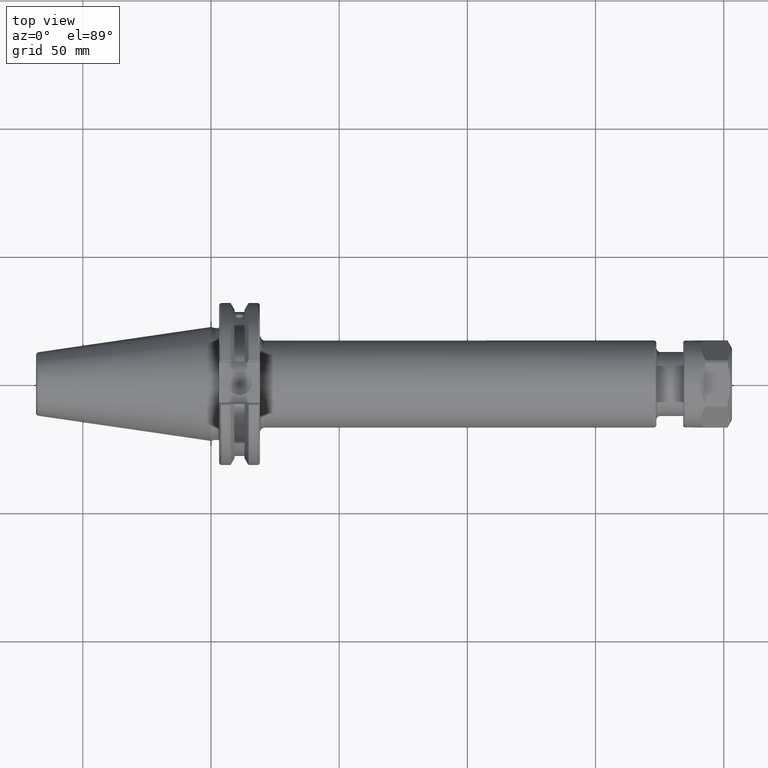
[diagram: clean part render]
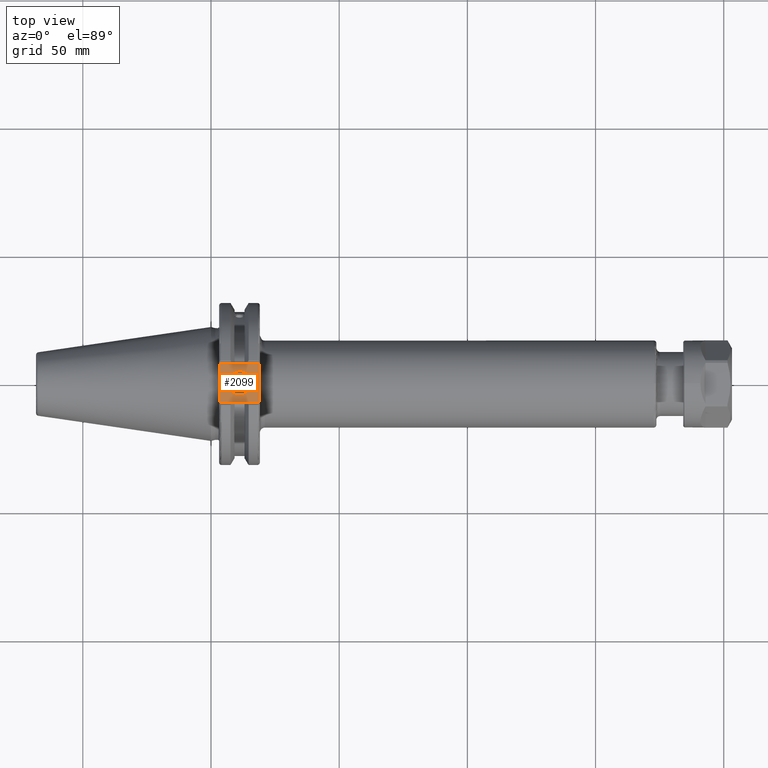
[diagram: same view with one face highlighted and labeled with its STEP entity id]
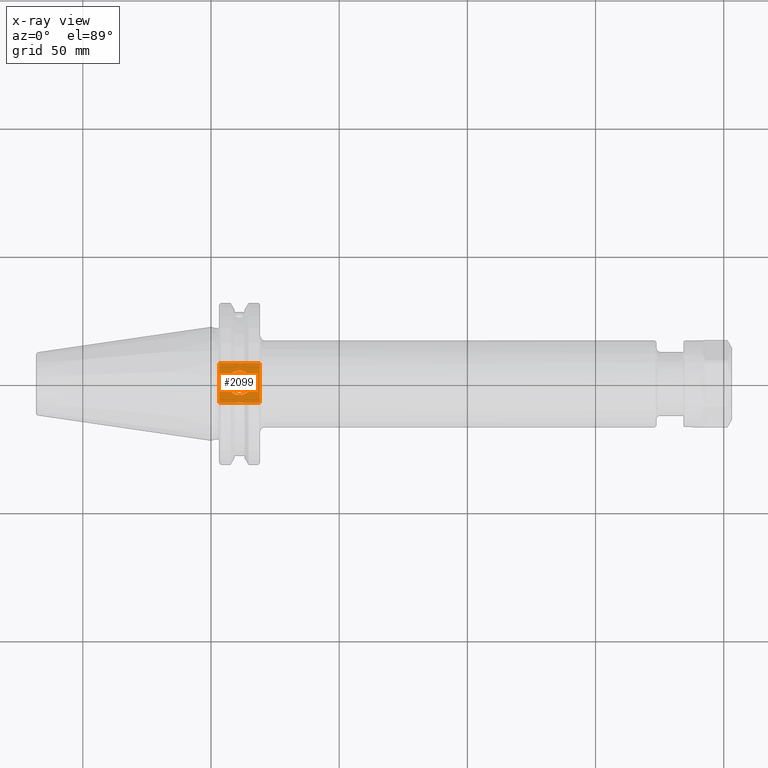
[diagram: x-ray of the same camera — body ghosted, the highlighted face saturated]
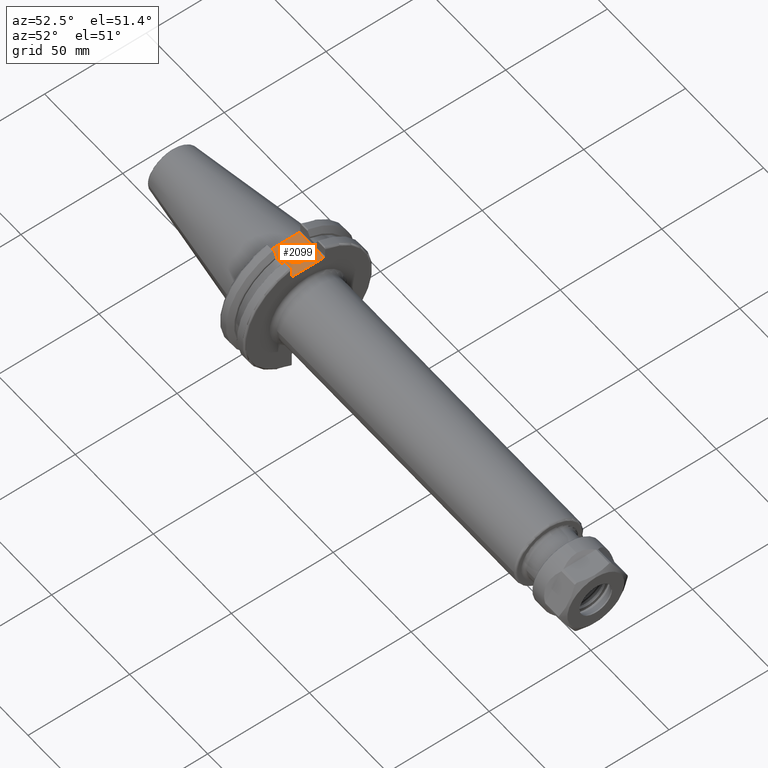
[diagram: same view with one face highlighted and labeled with its STEP entity id]
A machine part, top view. The second image highlights one B-rep face of the part: STEP entity #2099.
The next image is the same camera in x-ray: the body ghosted, the highlighted face saturated — about 0% of this face is hidden behind the body in this view.
A second angle (auxiliary view) of the same face is appended — the face is thin or edge-on in the first view.
In plain terms, the highlighted planar face has unit normal (0, 0, 1).
Its self-contained STEP definition (entity closure, byte-faithful):
#199=FACE_BOUND('',#482,.T.);
#243=PLANE('',#2389);
#348=FACE_OUTER_BOUND('',#481,.T.);
#481=EDGE_LOOP('',(#1843,#1844,#1845,#1846));
#482=EDGE_LOOP('',(#1847));
#534=LINE('',#3250,#656);
#574=LINE('',#3590,#696);
#605=LINE('',#3825,#727);
#607=LINE('',#3828,#729);
#656=VECTOR('',#2556,10.);
#696=VECTOR('',#2754,10.);
#727=VECTOR('',#2851,10.);
#729=VECTOR('',#2855,10.);
#840=CIRCLE('',#2374,4.7625);
#904=VERTEX_POINT('',#3247);
#905=VERTEX_POINT('',#3249);
#983=VERTEX_POINT('',#3587);
#984=VERTEX_POINT('',#3589);
#1030=VERTEX_POINT('',#3858);
#1118=EDGE_CURVE('',#904,#905,#534,.T.);
#1224=EDGE_CURVE('',#983,#984,#574,.T.);
#1290=EDGE_CURVE('',#905,#983,#605,.T.);
#1292=EDGE_CURVE('',#984,#904,#607,.T.);
#1304=EDGE_CURVE('',#1030,#1030,#840,.T.);
#1843=ORIENTED_EDGE('',*,*,#1290,.F.);
#1844=ORIENTED_EDGE('',*,*,#1118,.F.);
#1845=ORIENTED_EDGE('',*,*,#1292,.F.);
#1846=ORIENTED_EDGE('',*,*,#1224,.F.);
#1847=ORIENTED_EDGE('',*,*,#1304,.T.);
#2099=ADVANCED_FACE('',(#348,#199),#243,.T.);
#2374=AXIS2_PLACEMENT_3D('',#3859,#2887,#2888);
#2389=AXIS2_PLACEMENT_3D('',#3875,#2918,#2919);
#2556=DIRECTION('',(0.,-1.,0.));
#2754=DIRECTION('',(0.,1.,0.));
#2851=DIRECTION('',(-1.,1.31581988103722E-16,0.));
#2855=DIRECTION('',(1.,0.,0.));
#2887=DIRECTION('center_axis',(0.,0.,-1.));
#2888=DIRECTION('ref_axis',(1.,0.,0.));
#2918=DIRECTION('center_axis',(0.,0.,1.));
#2919=DIRECTION('ref_axis',(1.,0.,0.));
#3247=CARTESIAN_POINT('',(19.05,7.69,25.));
#3249=CARTESIAN_POINT('',(19.05,-7.69,25.));
#3250=CARTESIAN_POINT('',(19.05,0.,25.));
#3587=CARTESIAN_POINT('',(3.175,-7.68999999999999,25.));
#3589=CARTESIAN_POINT('',(3.175,7.69,25.));
#3590=CARTESIAN_POINT('',(3.175,15.875,25.));
#3825=CARTESIAN_POINT('',(9.44125,-7.69,25.));
#3828=CARTESIAN_POINT('',(17.87875,7.69,25.));
#3858=CARTESIAN_POINT('',(6.3645,-5.83238038093927E-16,25.));
#3859=CARTESIAN_POINT('Origin',(11.127,0.,25.));
#3875=CARTESIAN_POINT('Origin',(15.7075,0.,25.));